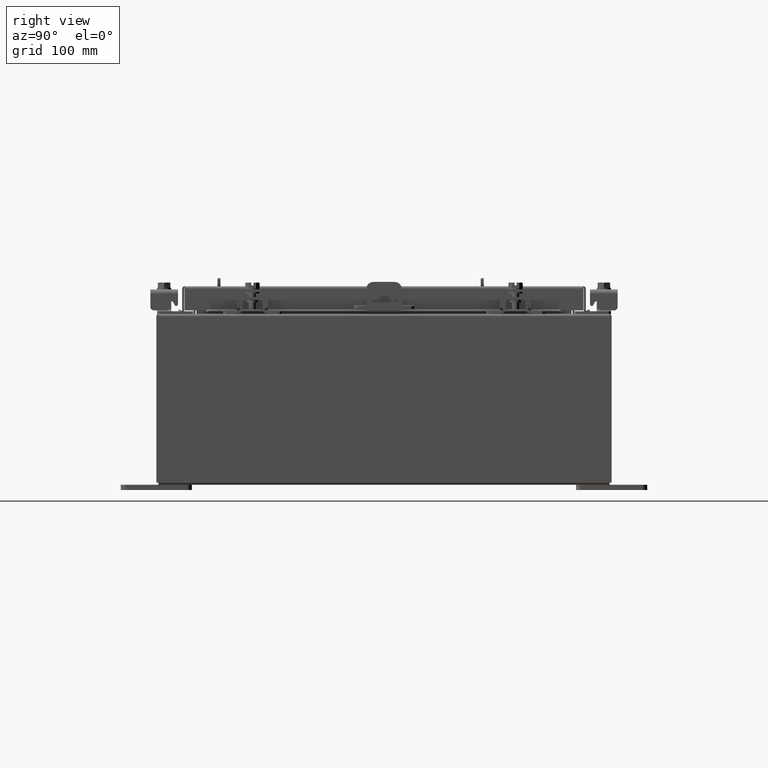
[diagram: clean part render]
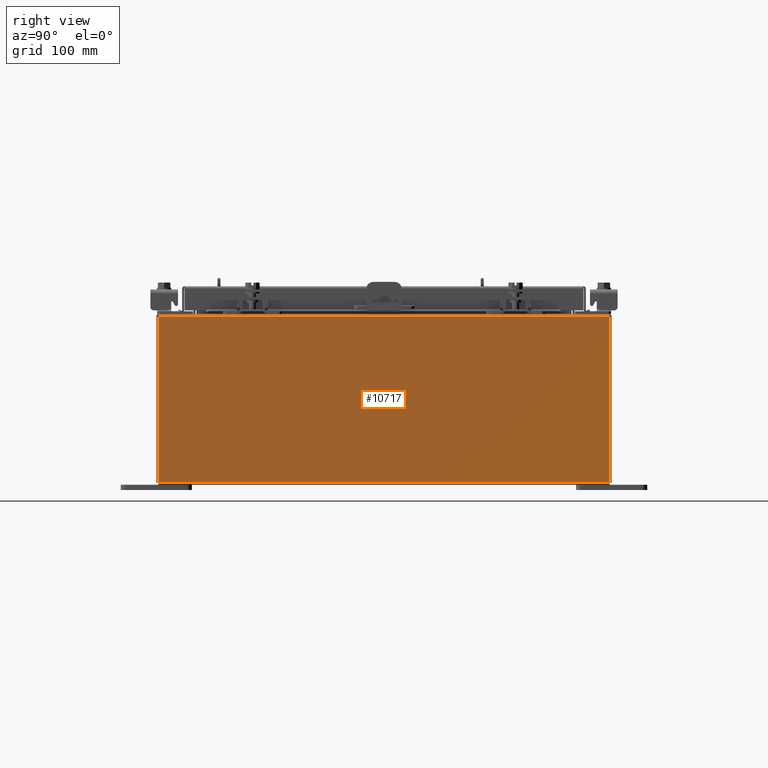
[diagram: same view with one face highlighted and labeled with its STEP entity id]
A machine part, right view. The second image highlights one B-rep face of the part: STEP entity #10717.
In plain terms, the highlighted planar face has unit normal (-1, 0, 0).
Its self-contained STEP definition (entity closure, byte-faithful):
#104 = DIRECTION ( 'NONE',  ( -3.503965158194251300E-015, -1.844192188523290500E-016, -1.000000000000000000 ) ) ;
#256 = PLANE ( 'NONE',  #8042 ) ;
#484 = CARTESIAN_POINT ( 'NONE',  ( 7.999999999999999100, 7.925299999999998200, -2.829253492156558900E-014 ) ) ;
#1308 = VERTEX_POINT ( 'NONE', #12966 ) ;
#3336 = VECTOR ( 'NONE', #11767, 39.37007874015748100 ) ;
#3809 = ORIENTED_EDGE ( 'NONE', *, *, #11295, .T. ) ;
#4580 = EDGE_CURVE ( 'NONE', #15256, #11329, #11928, .T. ) ;
#5153 = ORIENTED_EDGE ( 'NONE', *, *, #5571, .F. ) ;
#5306 = VERTEX_POINT ( 'NONE', #18878 ) ;
#5520 = CARTESIAN_POINT ( 'NONE',  ( 8.000000000000019500, 7.925300000000000000, 5.837600000000001000 ) ) ;
#5571 = EDGE_CURVE ( 'NONE', #15256, #1308, #9434, .T. ) ;
#6140 = VECTOR ( 'NONE', #20027, 39.37007874015748100 ) ;
#6795 = DIRECTION ( 'NONE',  ( 3.503965158194250900E-015, 0.0000000000000000000, 1.000000000000000000 ) ) ;
#8042 = AXIS2_PLACEMENT_3D ( 'NONE', #11535, #16435, #6795 ) ;
#8464 = VECTOR ( 'NONE', #13349, 39.37007874015748100 ) ;
#9434 = LINE ( 'NONE', #9778, #8464 ) ;
#9441 = ORIENTED_EDGE ( 'NONE', *, *, #4580, .T. ) ;
#9666 = VECTOR ( 'NONE', #104, 39.37007874015748100 ) ;
#9778 = CARTESIAN_POINT ( 'NONE',  ( 7.999999999999999100, -7.925300000000000000, 0.01299999999999984700 ) ) ;
#9822 = EDGE_LOOP ( 'NONE', ( #15689, #3809, #5153, #9441 ) ) ;
#10397 = LINE ( 'NONE', #5520, #6140 ) ;
#10664 = LINE ( 'NONE', #19418, #9666 ) ;
#10686 = FACE_OUTER_BOUND ( 'NONE', #9822, .T. ) ;
#10717 = ADVANCED_FACE ( 'NONE', ( #10686 ), #256, .F. ) ;
#11295 = EDGE_CURVE ( 'NONE', #5306, #1308, #10664, .T. ) ;
#11329 = VERTEX_POINT ( 'NONE', #19570 ) ;
#11524 = EDGE_CURVE ( 'NONE', #11329, #5306, #10397, .T. ) ;
#11535 = CARTESIAN_POINT ( 'NONE',  ( 7.999999999999999100, 0.0000000000000000000, -2.829253492156558900E-014 ) ) ;
#11767 = DIRECTION ( 'NONE',  ( 3.503965158194251300E-015, 0.0000000000000000000, 1.000000000000000000 ) ) ;
#11928 = LINE ( 'NONE', #484, #3336 ) ;
#12966 = CARTESIAN_POINT ( 'NONE',  ( 7.999999999999999100, -7.925300000000000000, 0.01299999999999984500 ) ) ;
#13349 = DIRECTION ( 'NONE',  ( -0.0000000000000000000, -1.000000000000000000, -0.0000000000000000000 ) ) ;
#15256 = VERTEX_POINT ( 'NONE', #20416 ) ;
#15689 = ORIENTED_EDGE ( 'NONE', *, *, #11524, .T. ) ;
#16435 = DIRECTION ( 'NONE',  ( -1.000000000000000000, 0.0000000000000000000, 3.503965158194250900E-015 ) ) ;
#18878 = CARTESIAN_POINT ( 'NONE',  ( 8.000000000000019500, -7.925300000000000000, 5.837600000000001000 ) ) ;
#19418 = CARTESIAN_POINT ( 'NONE',  ( 7.999999999999999100, -7.925300000000000900, -2.683095728639522500E-014 ) ) ;
#19570 = CARTESIAN_POINT ( 'NONE',  ( 8.000000000000019500, 7.925300000000000000, 5.837600000000001000 ) ) ;
#20027 = DIRECTION ( 'NONE',  ( -0.0000000000000000000, -1.000000000000000000, -0.0000000000000000000 ) ) ;
#20416 = CARTESIAN_POINT ( 'NONE',  ( 7.999999999999999100, 7.925300000000000000, 0.01299999999999984700 ) ) ;